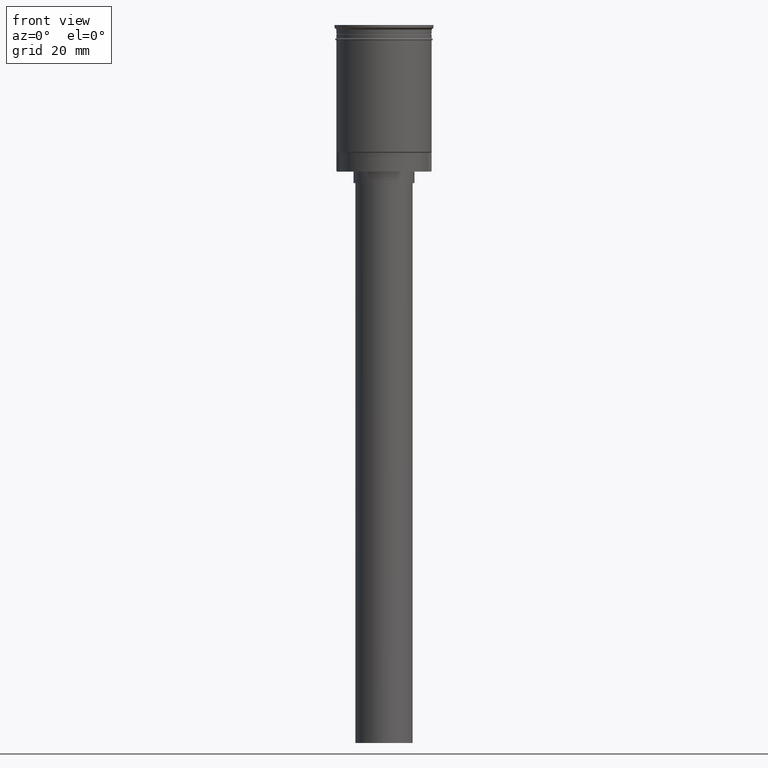
[diagram: clean part render]
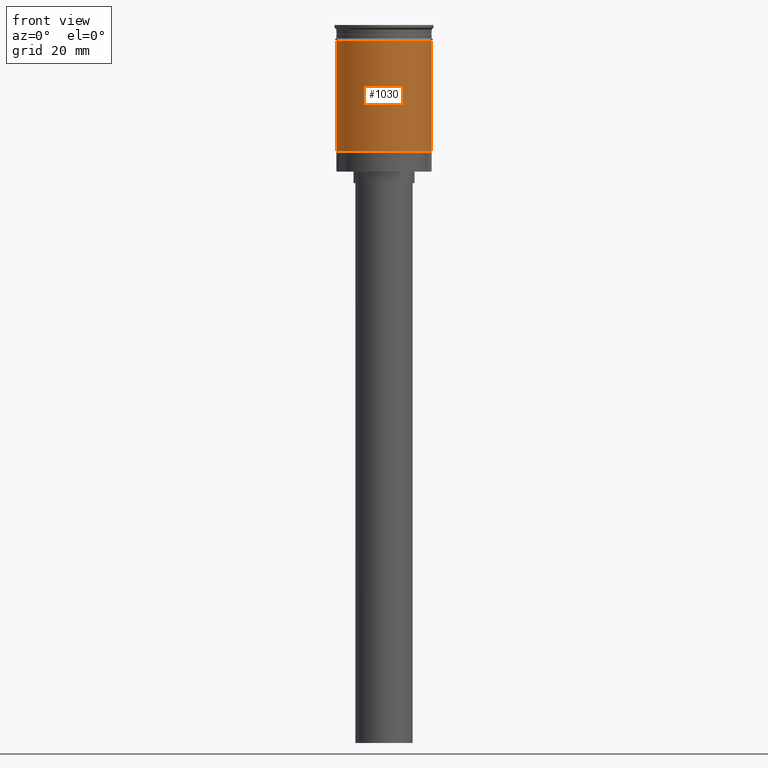
[diagram: same view with one face highlighted and labeled with its STEP entity id]
A machine part, front view. The second image highlights one B-rep face of the part: STEP entity #1030.
In plain terms, the highlighted cylindrical surface (partial cylindrical patch) has radius 12.5 mm, axis along (-0, -0, 1).
Its self-contained STEP definition (entity closure, byte-faithful):
#8 = CARTESIAN_POINT ( 'NONE',  ( 0.000000000000000000, 0.000000000000000000, -3.999999999999996447 ) ) ;
#62 = VECTOR ( 'NONE', #1538, 1000.000000000000000 ) ;
#103 = CARTESIAN_POINT ( 'NONE',  ( 12.49999999999999645, 0.000000000000000000, 0.000000000000000000 ) ) ;
#184 = CARTESIAN_POINT ( 'NONE',  ( -12.49999999999999645, 1.530808498934191127E-15, 0.000000000000000000 ) ) ;
#207 = EDGE_CURVE ( 'NONE', #1332, #787, #460, .T. ) ;
#337 = FACE_OUTER_BOUND ( 'NONE', #1470, .T. ) ;
#412 = VECTOR ( 'NONE', #579, 1000.000000000000000 ) ;
#448 = CYLINDRICAL_SURFACE ( 'NONE', #1402, 12.49999999999999645 ) ;
#460 = CIRCLE ( 'NONE', #1098, 12.49999999999999822 ) ;
#526 = ORIENTED_EDGE ( 'NONE', *, *, #1471, .F. ) ;
#579 = DIRECTION ( 'NONE',  ( -0.000000000000000000, -0.000000000000000000, 1.000000000000000000 ) ) ;
#586 = DIRECTION ( 'NONE',  ( -0.000000000000000000, -0.000000000000000000, 1.000000000000000000 ) ) ;
#603 = CARTESIAN_POINT ( 'NONE',  ( 0.000000000000000000, 0.000000000000000000, -33.29999999999998295 ) ) ;
#632 = ORIENTED_EDGE ( 'NONE', *, *, #1195, .T. ) ;
#644 = ORIENTED_EDGE ( 'NONE', *, *, #207, .F. ) ;
#669 = ORIENTED_EDGE ( 'NONE', *, *, #1128, .T. ) ;
#697 = CARTESIAN_POINT ( 'NONE',  ( 0.000000000000000000, 0.000000000000000000, 0.000000000000000000 ) ) ;
#710 = VERTEX_POINT ( 'NONE', #983 ) ;
#787 = VERTEX_POINT ( 'NONE', #1365 ) ;
#946 = DIRECTION ( 'NONE',  ( -0.000000000000000000, -0.000000000000000000, 1.000000000000000000 ) ) ;
#983 = CARTESIAN_POINT ( 'NONE',  ( -12.49999999999999289, 0.000000000000000000, -33.29999999999998295 ) ) ;
#1030 = ADVANCED_FACE ( 'NONE', ( #337 ), #448, .T. ) ;
#1058 = DIRECTION ( 'NONE',  ( 1.000000000000000000, 0.000000000000000000, 0.000000000000000000 ) ) ;
#1068 = LINE ( 'NONE', #103, #412 ) ;
#1077 = AXIS2_PLACEMENT_3D ( 'NONE', #603, #586, #1084 ) ;
#1084 = DIRECTION ( 'NONE',  ( -1.000000000000000000, 0.000000000000000000, 0.000000000000000000 ) ) ;
#1098 = AXIS2_PLACEMENT_3D ( 'NONE', #8, #1496, #1372 ) ;
#1128 = EDGE_CURVE ( 'NONE', #710, #1218, #1131, .T. ) ;
#1131 = CIRCLE ( 'NONE', #1077, 12.49999999999999645 ) ;
#1195 = EDGE_CURVE ( 'NONE', #1218, #787, #1068, .T. ) ;
#1216 = CARTESIAN_POINT ( 'NONE',  ( 12.49999999999999645, 1.530808498934191127E-15, -33.29999999999998295 ) ) ;
#1218 = VERTEX_POINT ( 'NONE', #1216 ) ;
#1290 = LINE ( 'NONE', #184, #62 ) ;
#1332 = VERTEX_POINT ( 'NONE', #1423 ) ;
#1365 = CARTESIAN_POINT ( 'NONE',  ( 12.49999999999999822, 0.000000000000000000, -3.999999999999996447 ) ) ;
#1372 = DIRECTION ( 'NONE',  ( 1.000000000000000000, 0.000000000000000000, 0.000000000000000000 ) ) ;
#1402 = AXIS2_PLACEMENT_3D ( 'NONE', #697, #946, #1058 ) ;
#1423 = CARTESIAN_POINT ( 'NONE',  ( -12.50000000000000000, 1.530808498934191521E-15, -3.999999999999996447 ) ) ;
#1470 = EDGE_LOOP ( 'NONE', ( #526, #669, #632, #644 ) ) ;
#1471 = EDGE_CURVE ( 'NONE', #710, #1332, #1290, .T. ) ;
#1496 = DIRECTION ( 'NONE',  ( -0.000000000000000000, -0.000000000000000000, 1.000000000000000000 ) ) ;
#1538 = DIRECTION ( 'NONE',  ( -0.000000000000000000, -0.000000000000000000, 1.000000000000000000 ) ) ;